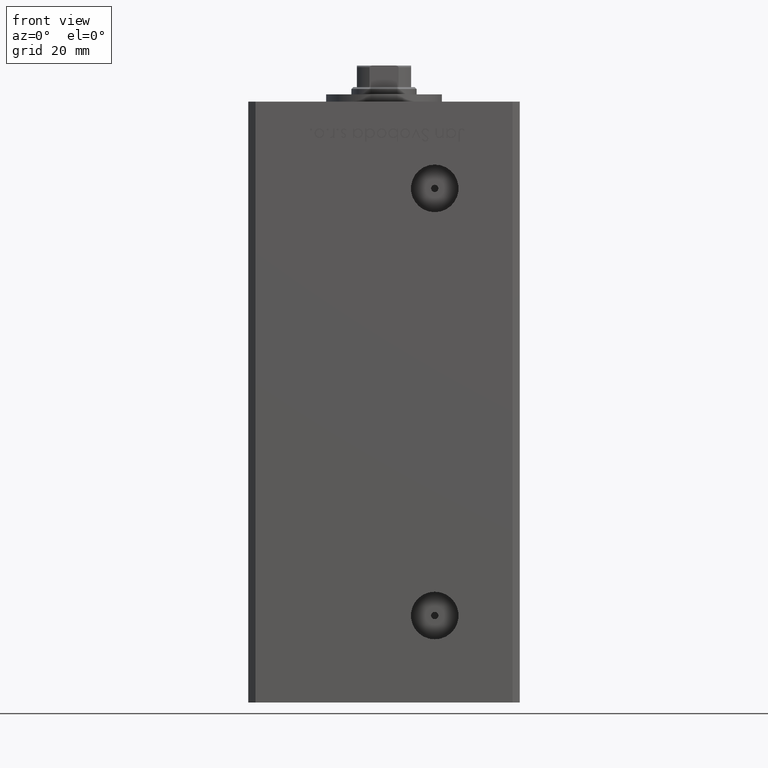
[diagram: clean part render]
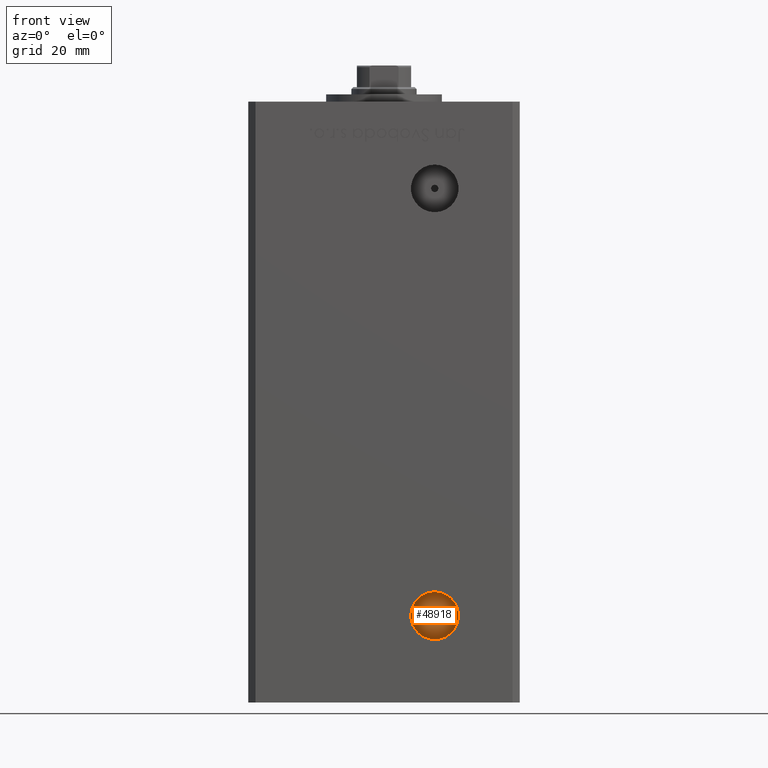
[diagram: same view with one face highlighted and labeled with its STEP entity id]
A machine part, front view. The second image highlights one B-rep face of the part: STEP entity #48918.
In plain terms, the highlighted planar face has unit normal (0, -1, 0).
Its self-contained STEP definition (entity closure, byte-faithful):
#854 = VERTEX_POINT ( 'NONE', #4537 ) ;
#2385 = DIRECTION ( 'NONE',  ( 0.000000000000000000, 0.000000000000000000, -1.000000000000000000 ) ) ;
#4537 = CARTESIAN_POINT ( 'NONE',  ( 13.99999999999999112, -19.50000000000000355, 8.000000000000007105 ) ) ;
#6919 = CARTESIAN_POINT ( 'NONE',  ( 13.99999999999999112, -19.50000000000000355, 9.000000000000007105 ) ) ;
#7640 = CARTESIAN_POINT ( 'NONE',  ( 13.99999999999999112, -19.50000000000000355, 9.000000000000007105 ) ) ;
#8124 = ORIENTED_EDGE ( 'NONE', *, *, #37718, .T. ) ;
#9250 = VERTEX_POINT ( 'NONE', #37779 ) ;
#10134 = CIRCLE ( 'NONE', #17738, 6.579999999999998295 ) ;
#11473 = VERTEX_POINT ( 'NONE', #29093 ) ;
#12967 = EDGE_CURVE ( 'NONE', #11473, #854, #16798, .T. ) ;
#13429 = DIRECTION ( 'NONE',  ( 0.000000000000000000, -1.000000000000000000, 0.000000000000000000 ) ) ;
#13689 = CARTESIAN_POINT ( 'NONE',  ( 13.99999999999999112, -19.50000000000000355, 9.000000000000007105 ) ) ;
#15433 = EDGE_CURVE ( 'NONE', #9250, #30361, #10134, .T. ) ;
#16798 = CIRCLE ( 'NONE', #43789, 1.000000000000000888 ) ;
#17738 = AXIS2_PLACEMENT_3D ( 'NONE', #6919, #49941, #47027 ) ;
#19377 = CARTESIAN_POINT ( 'NONE',  ( 13.99999999999999112, -19.50000000000000355, 9.000000000000007105 ) ) ;
#20101 = EDGE_LOOP ( 'NONE', ( #47552, #8124 ) ) ;
#22394 = PLANE ( 'NONE',  #49934 ) ;
#25337 = CIRCLE ( 'NONE', #44700, 6.579999999999998295 ) ;
#25574 = FACE_OUTER_BOUND ( 'NONE', #20101, .T. ) ;
#26128 = DIRECTION ( 'NONE',  ( 0.000000000000000000, -1.000000000000000000, 0.000000000000000000 ) ) ;
#28844 = ORIENTED_EDGE ( 'NONE', *, *, #12967, .F. ) ;
#29093 = CARTESIAN_POINT ( 'NONE',  ( 13.99999999999999112, -19.50000000000000355, 10.00000000000000888 ) ) ;
#29133 = ORIENTED_EDGE ( 'NONE', *, *, #40647, .F. ) ;
#30257 = EDGE_LOOP ( 'NONE', ( #29133, #28844 ) ) ;
#30361 = VERTEX_POINT ( 'NONE', #37607 ) ;
#33824 = AXIS2_PLACEMENT_3D ( 'NONE', #7640, #43529, #40085 ) ;
#37607 = CARTESIAN_POINT ( 'NONE',  ( 13.99999999999999112, -19.50000000000000355, 15.58000000000000718 ) ) ;
#37718 = EDGE_CURVE ( 'NONE', #30361, #9250, #25337, .T. ) ;
#37779 = CARTESIAN_POINT ( 'NONE',  ( 13.99999999999999112, -19.50000000000000355, 2.420000000000009699 ) ) ;
#38018 = CARTESIAN_POINT ( 'NONE',  ( 13.99999999999999112, -19.50000000000000355, 9.000000000000007105 ) ) ;
#40085 = DIRECTION ( 'NONE',  ( 0.000000000000000000, 0.000000000000000000, -1.000000000000000000 ) ) ;
#40647 = EDGE_CURVE ( 'NONE', #854, #11473, #45645, .T. ) ;
#42894 = DIRECTION ( 'NONE',  ( 0.000000000000000000, -1.000000000000000000, 0.000000000000000000 ) ) ;
#43529 = DIRECTION ( 'NONE',  ( 0.000000000000000000, -1.000000000000000000, 0.000000000000000000 ) ) ;
#43789 = AXIS2_PLACEMENT_3D ( 'NONE', #38018, #26128, #2385 ) ;
#44700 = AXIS2_PLACEMENT_3D ( 'NONE', #19377, #42894, #51324 ) ;
#45645 = CIRCLE ( 'NONE', #33824, 1.000000000000000888 ) ;
#46427 = DIRECTION ( 'NONE',  ( 0.000000000000000000, -0.000000000000000000, -1.000000000000000000 ) ) ;
#47027 = DIRECTION ( 'NONE',  ( 0.000000000000000000, 0.000000000000000000, -1.000000000000000000 ) ) ;
#47552 = ORIENTED_EDGE ( 'NONE', *, *, #15433, .T. ) ;
#48918 = ADVANCED_FACE ( 'NONE', ( #49593, #25574 ), #22394, .T. ) ;
#49593 = FACE_BOUND ( 'NONE', #30257, .T. ) ;
#49934 = AXIS2_PLACEMENT_3D ( 'NONE', #13689, #13429, #46427 ) ;
#49941 = DIRECTION ( 'NONE',  ( 0.000000000000000000, -1.000000000000000000, 0.000000000000000000 ) ) ;
#51324 = DIRECTION ( 'NONE',  ( 0.000000000000000000, 0.000000000000000000, -1.000000000000000000 ) ) ;